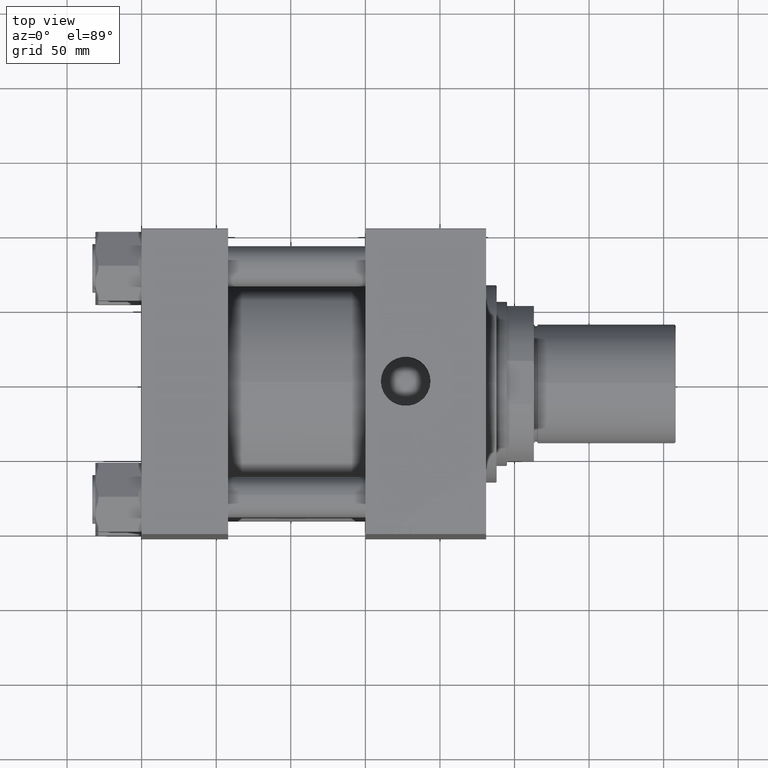
[diagram: clean part render]
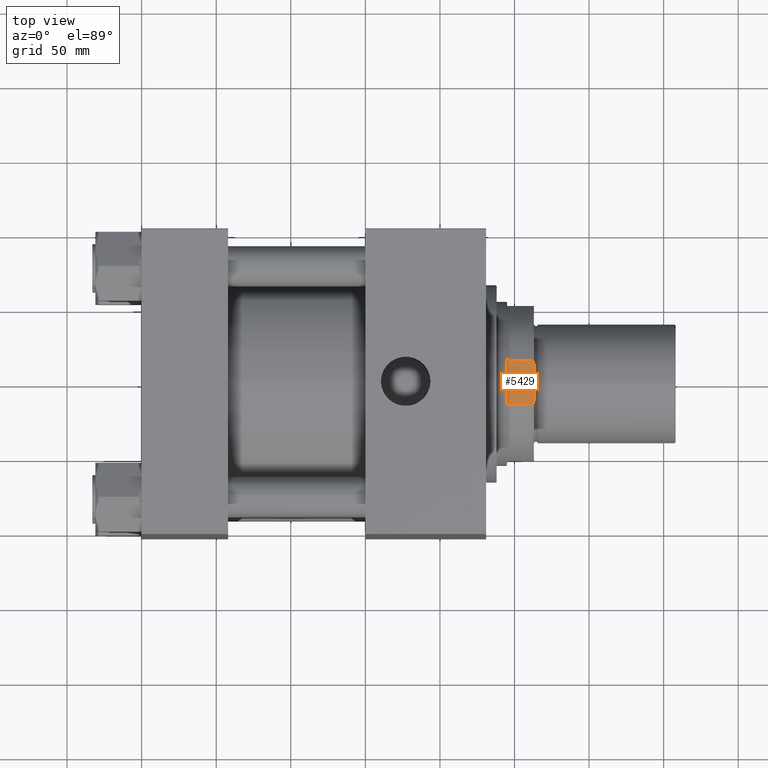
[diagram: same view with one face highlighted and labeled with its STEP entity id]
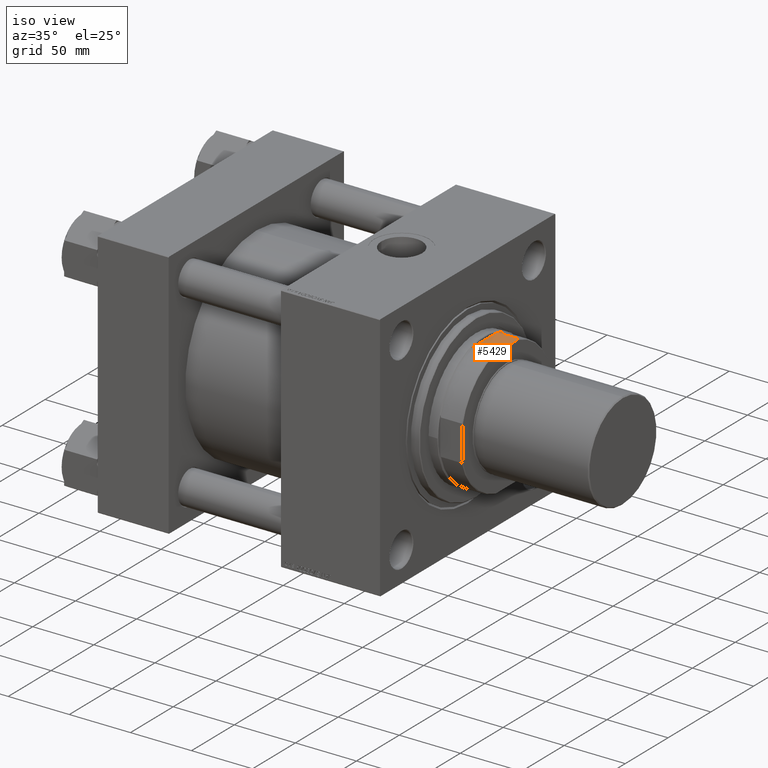
[diagram: same view with one face highlighted and labeled with its STEP entity id]
A machine part, top view. The second image highlights one B-rep face of the part: STEP entity #5429.
A second angle (iso view) of the same face is appended — the face is thin or edge-on in the first view.
In plain terms, the highlighted planar face has unit normal (0, 0, -1).
Its self-contained STEP definition (entity closure, byte-faithful):
#196 = VERTEX_POINT ( 'NONE', #24792 ) ;
#352 = CARTESIAN_POINT ( 'NONE',  ( -14.56021977856099348, -52.00000000000001421, 187.5000000000000000 ) ) ;
#1323 = FACE_OUTER_BOUND ( 'NONE', #10456, .T. ) ;
#5429 = ADVANCED_FACE ( 'NONE', ( #1323 ), #6379, .F. ) ;
#6379 = PLANE ( 'NONE',  #48989 ) ;
#6654 = CARTESIAN_POINT ( 'NONE',  ( 13.24263005626782963, -51.99999999999999289, 204.8441323828177190 ) ) ;
#7607 = CARTESIAN_POINT ( 'NONE',  ( -12.57974562540865904, -51.99999999999999289, 205.0000000000000000 ) ) ;
#7643 = DIRECTION ( 'NONE',  ( -0.000000000000000000, -0.000000000000000000, 1.000000000000000000 ) ) ;
#8207 = ORIENTED_EDGE ( 'NONE', *, *, #52208, .T. ) ;
#8582 = ORIENTED_EDGE ( 'NONE', *, *, #21473, .T. ) ;
#8723 = LINE ( 'NONE', #11948, #10648 ) ;
#10456 = EDGE_LOOP ( 'NONE', ( #8582, #14118, #52993, #36802, #12325, #29239, #35836, #8207 ) ) ;
#10622 = EDGE_CURVE ( 'NONE', #196, #50284, #8723, .T. ) ;
#10648 = VECTOR ( 'NONE', #12483, 1000.000000000000000 ) ;
#11277 = EDGE_CURVE ( 'NONE', #37961, #30670, #38344, .T. ) ;
#11652 = LINE ( 'NONE', #28511, #32037 ) ;
#11948 = CARTESIAN_POINT ( 'NONE',  ( -51.99999999999997868, -51.99999999999999289, 187.0000000000000000 ) ) ;
#12325 = ORIENTED_EDGE ( 'NONE', *, *, #18692, .F. ) ;
#12483 = DIRECTION ( 'NONE',  ( 1.000000000000000000, 0.000000000000000000, 0.000000000000000000 ) ) ;
#14118 = ORIENTED_EDGE ( 'NONE', *, *, #11277, .T. ) ;
#14565 = CARTESIAN_POINT ( 'NONE',  ( -12.57974562540865904, -51.99999999999999289, 205.0000000000000000 ) ) ;
#15340 = CARTESIAN_POINT ( 'NONE',  ( -51.99999999999997868, -51.99999999999999289, 205.0000000000000000 ) ) ;
#15564 = EDGE_CURVE ( 'NONE', #29242, #30670, #43756, .T. ) ;
#15645 = CARTESIAN_POINT ( 'NONE',  ( -14.56021977856099348, -52.00000000000001421, 204.4999999999998295 ) ) ;
#15720 = CARTESIAN_POINT ( 'NONE',  ( -15.14832653141215957, -52.00000000000001421, 187.3414266004672299 ) ) ;
#16048 = VERTEX_POINT ( 'NONE', #47132 ) ;
#16731 = DIRECTION ( 'NONE',  ( -0.000000000000000000, -0.000000000000000000, 1.000000000000000000 ) ) ;
#18609 = VERTEX_POINT ( 'NONE', #51087 ) ;
#18692 = EDGE_CURVE ( 'NONE', #51444, #16048, #44101, .T. ) ;
#21473 = EDGE_CURVE ( 'NONE', #18609, #37961, #11652, .T. ) ;
#21871 = CARTESIAN_POINT ( 'NONE',  ( 14.56021977856099348, -52.00000000000001421, 204.4999999999998295 ) ) ;
#22674 = CARTESIAN_POINT ( 'NONE',  ( -51.99999999999997868, -51.99999999999999289, 205.0000000000000000 ) ) ;
#23687 = CARTESIAN_POINT ( 'NONE',  ( -14.56021977856099348, -52.00000000000001421, -0.001000000000001000089 ) ) ;
#24459 = CARTESIAN_POINT ( 'NONE',  ( -13.24263005626783851, -51.99999999999999289, 204.8441323828177190 ) ) ;
#24792 = CARTESIAN_POINT ( 'NONE',  ( -16.31716887208073175, -52.00000000000001421, 186.9999999999999716 ) ) ;
#25741 = CARTESIAN_POINT ( 'NONE',  ( 14.56021977856099348, -52.00000000000001421, 187.4999999999999432 ) ) ;
#27131 = B_SPLINE_CURVE_WITH_KNOTS ( 'NONE', 3,
 ( #7607, #24459, #49142, #15645 ),
 .UNSPECIFIED., .F., .F.,
 ( 4, 4 ),
 ( 1.734723475976807094E-18, 0.002042615448708989898 ),
 .UNSPECIFIED. ) ;
#28511 = CARTESIAN_POINT ( 'NONE',  ( 14.56021977856099348, -52.00000000000001421, -0.001000000000001000089 ) ) ;
#29239 = ORIENTED_EDGE ( 'NONE', *, *, #46571, .T. ) ;
#29242 = VERTEX_POINT ( 'NONE', #14565 ) ;
#29781 = CARTESIAN_POINT ( 'NONE',  ( 15.15000473216587196, -52.00000000000001421, 187.3409741009893423 ) ) ;
#30598 = EDGE_CURVE ( 'NONE', #29242, #16048, #27131, .T. ) ;
#30670 = VERTEX_POINT ( 'NONE', #49407 ) ;
#30804 = CARTESIAN_POINT ( 'NONE',  ( 16.31716887208071398, -52.00000000000001421, 187.0000000000000000 ) ) ;
#32037 = VECTOR ( 'NONE', #16731, 1000.000000000000000 ) ;
#32060 = CARTESIAN_POINT ( 'NONE',  ( -15.73393352191616934, -52.00000000000001421, 187.1746192605651515 ) ) ;
#33020 = CARTESIAN_POINT ( 'NONE',  ( 16.31716887208071398, -52.00000000000001421, 187.0000000000000000 ) ) ;
#35824 = CARTESIAN_POINT ( 'NONE',  ( 13.90274083665997296, -52.00000000000001421, 204.6772784795157065 ) ) ;
#35836 = ORIENTED_EDGE ( 'NONE', *, *, #10622, .T. ) ;
#36802 = ORIENTED_EDGE ( 'NONE', *, *, #30598, .T. ) ;
#37961 = VERTEX_POINT ( 'NONE', #21871 ) ;
#38344 = B_SPLINE_CURVE_WITH_KNOTS ( 'NONE', 3,
 ( #47892, #35824, #6654, #43620 ),
 .UNSPECIFIED., .F., .F.,
 ( 4, 4 ),
 ( 1.387778780781445676E-17, 0.002042615448708976454 ),
 .UNSPECIFIED. ) ;
#38706 = VECTOR ( 'NONE', #39209, 1000.000000000000000 ) ;
#39052 = DIRECTION ( 'NONE',  ( 0.000000000000000000, 1.000000000000000000, 0.000000000000000000 ) ) ;
#39209 = DIRECTION ( 'NONE',  ( 1.000000000000000000, 0.000000000000000000, 0.000000000000000000 ) ) ;
#42158 = B_SPLINE_CURVE_WITH_KNOTS ( 'NONE', 3,
 ( #33020, #49374, #29781, #25741 ),
 .UNSPECIFIED., .F., .F.,
 ( 4, 4 ),
 ( 0.2080737748760617678, 0.2098721783333077351 ),
 .UNSPECIFIED. ) ;
#43076 = VECTOR ( 'NONE', #7643, 1000.000000000000000 ) ;
#43620 = CARTESIAN_POINT ( 'NONE',  ( 12.57974562540865726, -51.99999999999999289, 205.0000000000000000 ) ) ;
#43756 = LINE ( 'NONE', #15340, #38706 ) ;
#44101 = LINE ( 'NONE', #23687, #43076 ) ;
#45331 = B_SPLINE_CURVE_WITH_KNOTS ( 'NONE', 3,
 ( #52433, #15720, #32060, #48422 ),
 .UNSPECIFIED., .F., .F.,
 ( 4, 4 ),
 ( 0.1479670057186405485, 0.1498031723359291023 ),
 .UNSPECIFIED. ) ;
#46571 = EDGE_CURVE ( 'NONE', #51444, #196, #45331, .T. ) ;
#46837 = DIRECTION ( 'NONE',  ( 0.000000000000000000, -0.000000000000000000, 1.000000000000000000 ) ) ;
#47132 = CARTESIAN_POINT ( 'NONE',  ( -14.56021977856099348, -52.00000000000001421, 204.4999999999998295 ) ) ;
#47892 = CARTESIAN_POINT ( 'NONE',  ( 14.56021977856099348, -52.00000000000001421, 204.4999999999998295 ) ) ;
#48422 = CARTESIAN_POINT ( 'NONE',  ( -16.31716887208073175, -52.00000000000001421, 186.9999999999999716 ) ) ;
#48989 = AXIS2_PLACEMENT_3D ( 'NONE', #22674, #39052, #46837 ) ;
#49142 = CARTESIAN_POINT ( 'NONE',  ( -13.90274083665996940, -51.99999999999999289, 204.6772784795157349 ) ) ;
#49374 = CARTESIAN_POINT ( 'NONE',  ( 15.73555969363871831, -52.00000000000001421, 187.1741323886640487 ) ) ;
#49407 = CARTESIAN_POINT ( 'NONE',  ( 12.57974562540865726, -51.99999999999999289, 205.0000000000000000 ) ) ;
#50284 = VERTEX_POINT ( 'NONE', #30804 ) ;
#51087 = CARTESIAN_POINT ( 'NONE',  ( 14.56021977856099348, -52.00000000000001421, 187.4999999999999432 ) ) ;
#51444 = VERTEX_POINT ( 'NONE', #352 ) ;
#52208 = EDGE_CURVE ( 'NONE', #50284, #18609, #42158, .T. ) ;
#52433 = CARTESIAN_POINT ( 'NONE',  ( -14.56021977856099348, -52.00000000000001421, 187.5000000000000000 ) ) ;
#52993 = ORIENTED_EDGE ( 'NONE', *, *, #15564, .F. ) ;